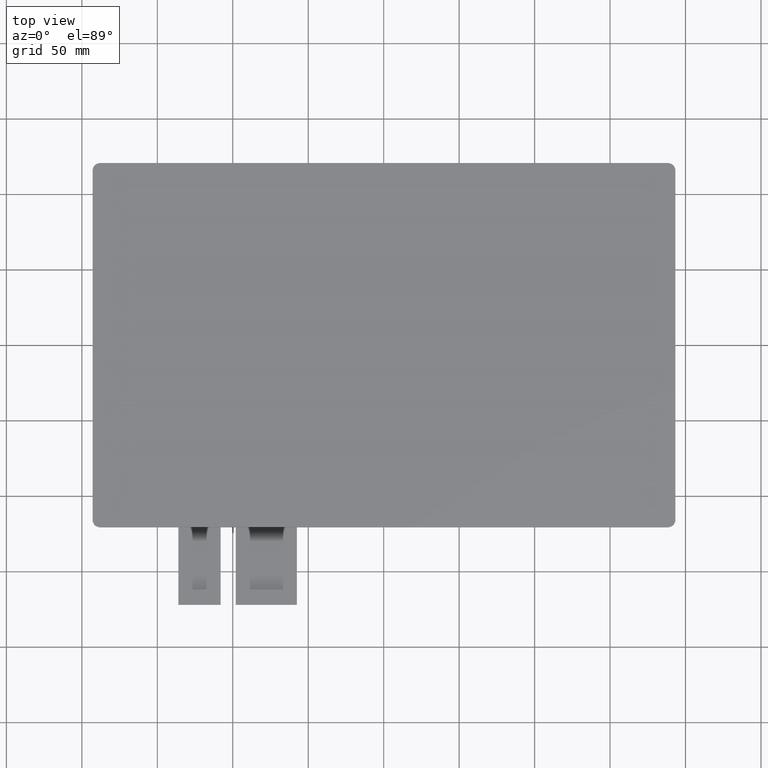
[diagram: clean part render]
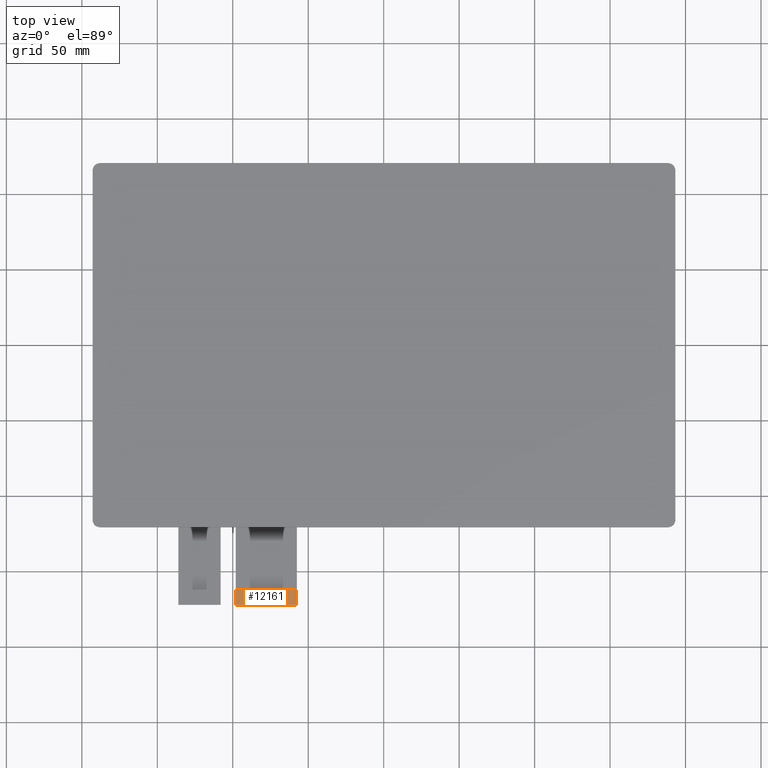
[diagram: same view with one face highlighted and labeled with its STEP entity id]
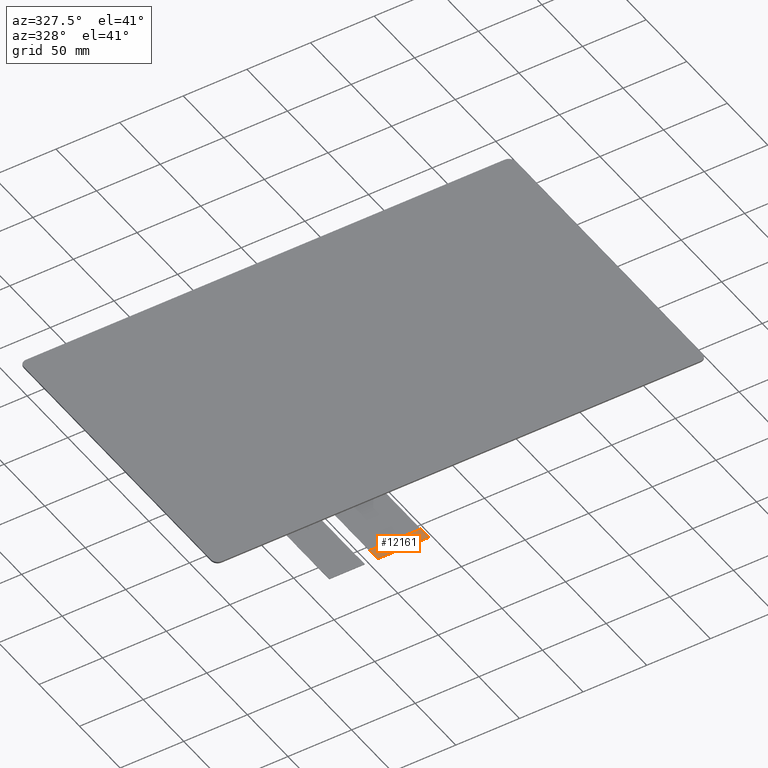
[diagram: same view with one face highlighted and labeled with its STEP entity id]
A machine part, top view. The second image highlights one B-rep face of the part: STEP entity #12161.
A second angle (auxiliary view) of the same face is appended — the face is thin or edge-on in the first view.
In plain terms, the highlighted planar face has unit normal (0, 0, 1).
Its self-contained STEP definition (entity closure, byte-faithful):
#601=PLANE('',#12775);
#1181=FACE_OUTER_BOUND('',#1765,.T.);
#1765=EDGE_LOOP('',(#11443,#11444,#11445,#11446,#11447,#11448));
#1805=LINE('',#15751,#3521);
#3450=LINE('',#19054,#5166);
#3456=LINE('',#19066,#5172);
#3458=LINE('',#19069,#5174);
#3521=VECTOR('',#12831,10.);
#5166=VECTOR('',#15588,10.);
#5172=VECTOR('',#15596,10.);
#5174=VECTOR('',#15600,10.);
#5232=CIRCLE('',#12215,0.2);
#5233=CIRCLE('',#12219,0.2);
#5249=VERTEX_POINT('',#15736);
#5250=VERTEX_POINT('',#15738);
#5254=VERTEX_POINT('',#15750);
#5575=VERTEX_POINT('',#16394);
#6356=VERTEX_POINT('',#19053);
#6361=VERTEX_POINT('',#19065);
#6405=EDGE_CURVE('',#5249,#5250,#5232,.T.);
#6411=EDGE_CURVE('',#5254,#5250,#1805,.T.);
#6733=EDGE_CURVE('',#5254,#5575,#5233,.T.);
#8062=EDGE_CURVE('',#6356,#5575,#3450,.T.);
#8068=EDGE_CURVE('',#6361,#6356,#3456,.T.);
#8070=EDGE_CURVE('',#5249,#6361,#3458,.T.);
#11443=ORIENTED_EDGE('',*,*,#6405,.F.);
#11444=ORIENTED_EDGE('',*,*,#8070,.T.);
#11445=ORIENTED_EDGE('',*,*,#8068,.T.);
#11446=ORIENTED_EDGE('',*,*,#8062,.T.);
#11447=ORIENTED_EDGE('',*,*,#6733,.F.);
#11448=ORIENTED_EDGE('',*,*,#6411,.T.);
#12161=ADVANCED_FACE('',(#1181),#601,.T.);
#12215=AXIS2_PLACEMENT_3D('',#15739,#12820,#12821);
#12219=AXIS2_PLACEMENT_3D('',#16395,#13155,#13156);
#12775=AXIS2_PLACEMENT_3D('',#19068,#15598,#15599);
#12820=DIRECTION('center_axis',(0.,0.,-1.));
#12821=DIRECTION('ref_axis',(0.707106781186579,-0.707106781186516,0.));
#12831=DIRECTION('',(1.,0.,0.));
#13155=DIRECTION('center_axis',(0.,0.,-1.));
#13156=DIRECTION('ref_axis',(-0.70710678118661,-0.707106781186485,0.));
#15588=DIRECTION('',(0.,-1.,0.));
#15596=DIRECTION('',(-1.,0.,0.));
#15598=DIRECTION('center_axis',(0.,0.,1.));
#15599=DIRECTION('ref_axis',(1.,0.,0.));
#15600=DIRECTION('',(0.,1.,0.));
#15736=CARTESIAN_POINT('',(-57.57,-171.9,-0.95));
#15738=CARTESIAN_POINT('',(-57.77,-172.1,-0.95));
#15739=CARTESIAN_POINT('Origin',(-57.77,-171.9,-0.95));
#15750=CARTESIAN_POINT('',(-97.87,-172.1,-0.95));
#15751=CARTESIAN_POINT('',(-98.07,-172.1,-0.95));
#16394=CARTESIAN_POINT('',(-98.07,-171.9,-0.95));
#16395=CARTESIAN_POINT('Origin',(-97.87,-171.9,-0.95));
#19053=CARTESIAN_POINT('',(-98.07,-162.1,-0.95));
#19054=CARTESIAN_POINT('',(-98.07,-162.1,-0.95));
#19065=CARTESIAN_POINT('',(-57.57,-162.1,-0.95));
#19066=CARTESIAN_POINT('',(-57.57,-162.1,-0.95));
#19068=CARTESIAN_POINT('Origin',(-77.82,-167.1,-0.95));
#19069=CARTESIAN_POINT('',(-57.57,-172.1,-0.95));